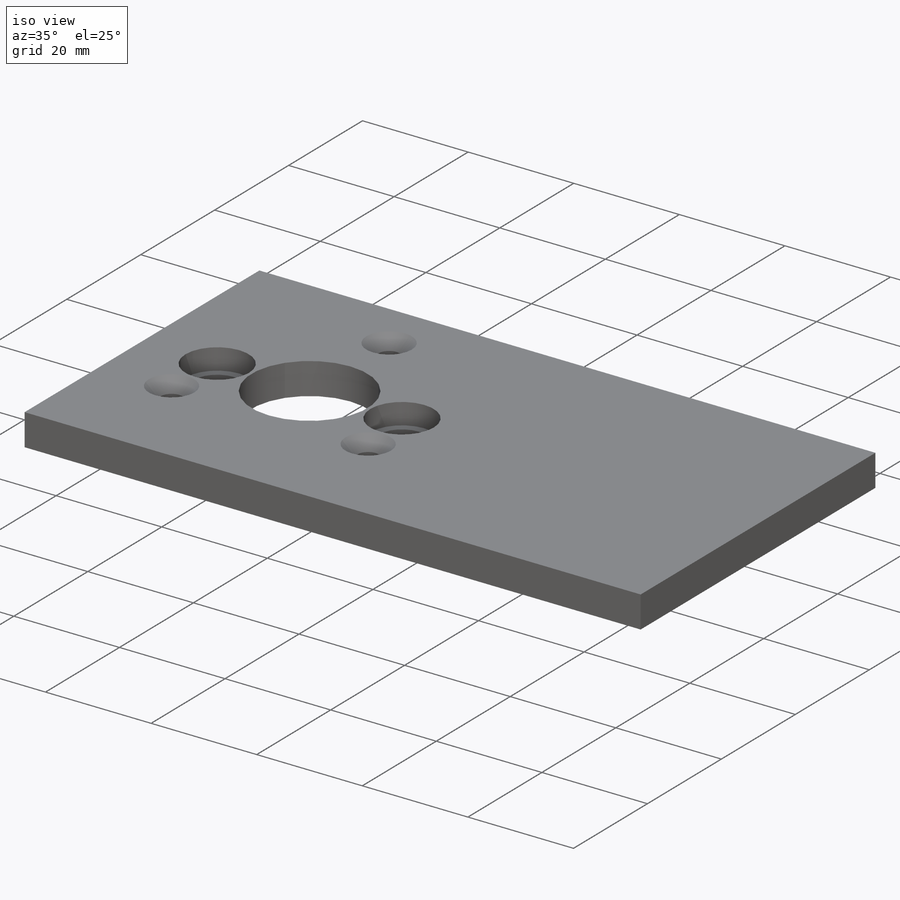
[diagram: iso view]
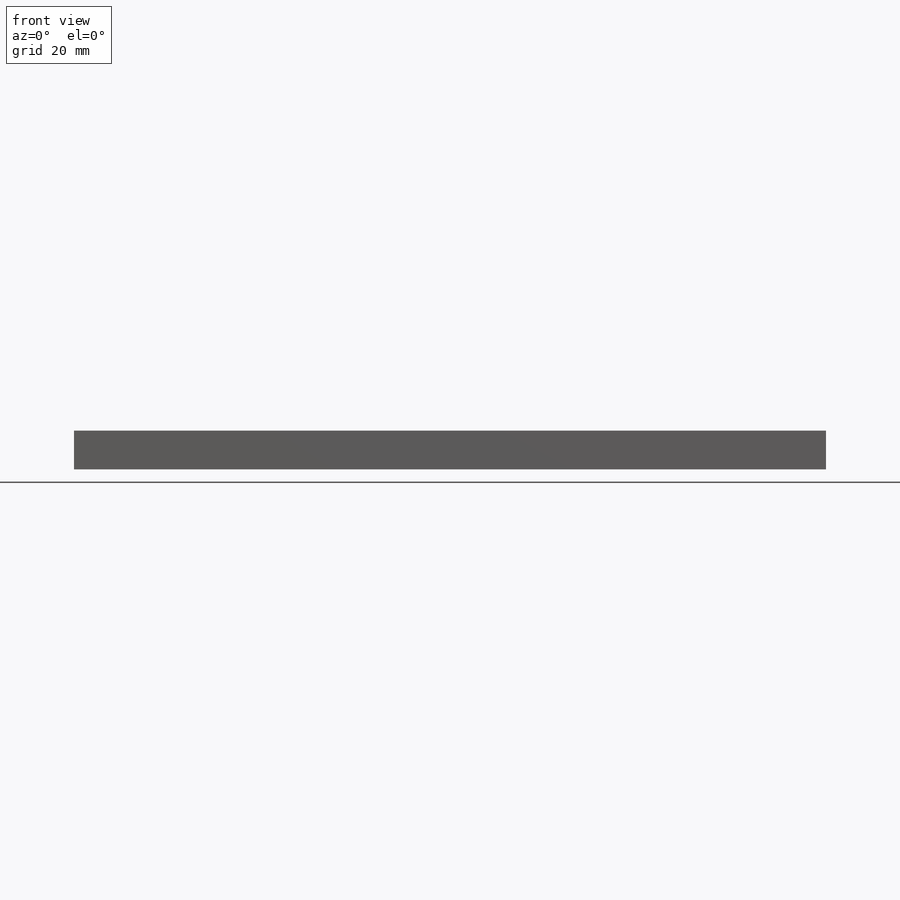
[diagram: front view]
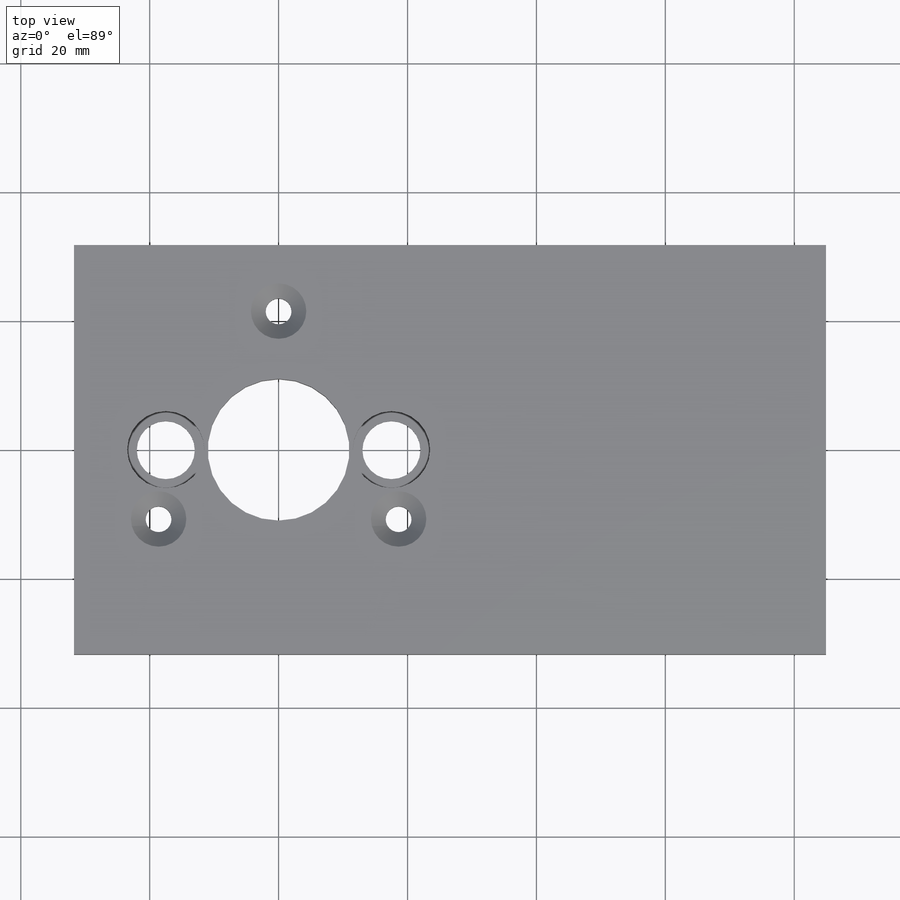
[diagram: top view]
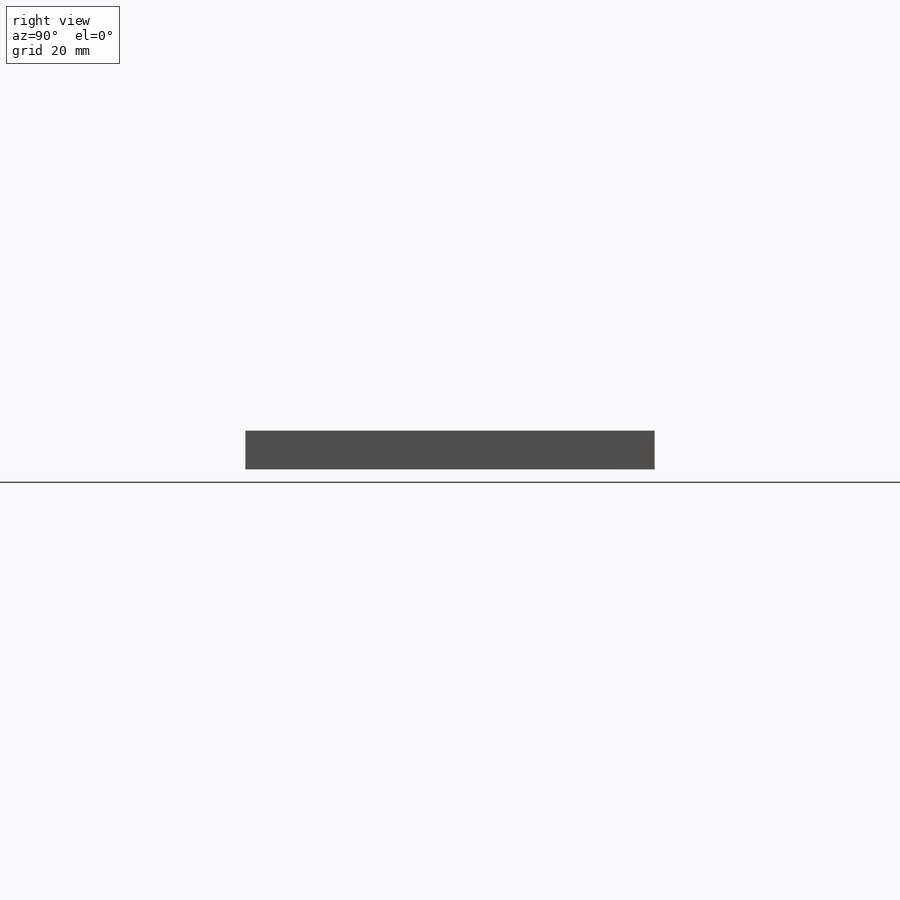
[diagram: right view]
SOLIDWORKS PART (.sldprt)
format: sldprt  version: not decoded by parser v0  size: 173,056 bytes
history: native  units: mm
features: sketch x2, extrude x2, material x1, chamfer x1 (+11 scaffold rows collapsed)
feature tree (17):
  scaffold x11  (default folders/planes/origin — collapsed)
  material  "Material <not specified>"
  sketch  "Sketch1"  dims[D1=22.0mm D2=43.0mm D3=35.0mm D4=4.0mm D6=12.0mm D8=0.0mm D9=63.5mm D10=31.75mm D11=31.75mm D5=3.0 D7=2.0]
  extrude  "Boss-Extrude1"  Depth=6mm
  chamfer  "Chamfer1"  Distance=2.3mm Angle=45deg
  sketch  "Sketch2"  dims[c1.D1=9.0mm c1.D2=9.0mm c1.D3=~16.174535mm c1.D4=~14.645378mm c2.D3=0.0mm c2.D4=0.0mm]
  extrude  "Boss-Extrude2"  Depth=2mm
decode coverage: 5 of 5 modeling features carry decoded parameters
note: ~ marks probable driven/reference dimensions
note: suppression state not decoded; provenance and decode notes live in map.json
